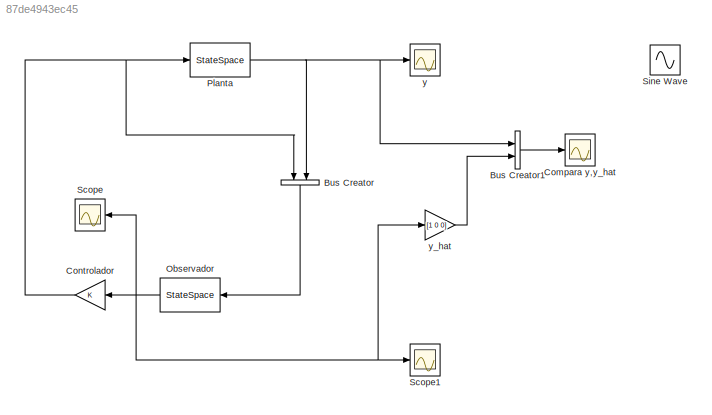
MODEL slx_87de4943ec45
KIND model
CONFIG AbsTol = auto
CONFIG FixedStep = 1e-6
CONFIG MaxStep = auto
CONFIG MinStep = auto
CONFIG RelTol = 1e-3
CONFIG SampleTimeConstraint = Unconstrained
CONFIG Solver = ode45
CONFIG SolverMode = Auto
CONFIG SolverName = ode45
CONFIG StartTime = 0.0
CONFIG StopTime = 15
BLOCK [BusCreator] Bus Creator
  DisplayOption = bar
  Inputs = 2
  Ports = [2, 1]
BLOCK [BusCreator] Bus Creator1
  DisplayOption = bar
  Inputs = 2
  Ports = [2, 1]
BLOCK [Scope] Compara y,y_hat
  Floating = off
  NumInputPorts = 1
  Ports = [1]
  SaveName = ScopeData3
BLOCK [Gain] Controlador
  Gain = K
  Multiplication = Matrix(K*u) (u vector)
  OutDataTypeStr = Inherit: Inherit via internal rule
  ParamDataTypeStr = Inherit: Inherit via internal rule
  SaturateOnIntegerOverflow = off
BLOCK [StateSpace] Observador
  A = Aobs
  B = Bobs
  C = Cobs
  D = Dobs
  Ports = [1, 1]
  X0 = x0obs
BLOCK [StateSpace] Planta
  A = A
  B = B
  C = C
  D = D
  Ports = [1, 1]
  X0 = x0
BLOCK [Scope] Scope
  Floating = off
  NumInputPorts = 1
  Ports = [1]
BLOCK [Scope] Scope1
  Floating = off
  NumInputPorts = 1
  Ports = [1]
  SaveName = ScopeData1
BLOCK [Sin] Sine Wave
  Ports = [0, 1]
  SampleTime = 0
BLOCK [Scope] y
  Floating = off
  NumInputPorts = 1
  Ports = [1]
  SaveName = ScopeData2
BLOCK [Gain] y_hat
  Gain = [1  0 0]
  Multiplication = Matrix(K*u) (u vector)
  OutDataTypeStr = Inherit: Inherit via internal rule
  ParamDataTypeStr = Inherit: Inherit via internal rule
  SaturateOnIntegerOverflow = off
LINE Bus Creator1:1 -> Compara y,y_hat:1
LINE Bus Creator:1 -> Observador:1
NET Controlador:1 -> Bus Creator:1, Planta:1
NET Observador:1 -> Controlador:1, Scope1:1, Scope:1, y_hat:1
NET Planta:1 -> Bus Creator1:1, Bus Creator:2, y:1
LINE y_hat:1 -> Bus Creator1:2
note: NET lines group one-source signal fan-out (src -> all destinations, sorted); 1:1 wires keep LINE
